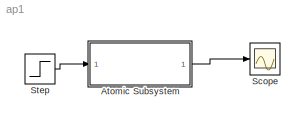
MODEL ap1
KIND model
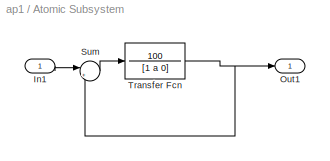
BLOCK [SubSystem] Atomic Subsystem
  FunctionWithSeparateData = off
  MaskEnableString = on
  MaskHideContents = off
  MaskIconFrame = on
  MaskIconOpaque = on
  MaskIconRotate = none
  MaskIconUnits = autoscale
  MaskPromptString = variabila
  MaskStyleString = edit
  MaskToolTipString = on
  MaskTunableValueString = on
  MaskValueString = 25
  MaskVariables = a=@1;
  MaskVisibilityString = on
  MinAlgLoopOccurrences = off
  Opaque = off
  Ports = [1, 1]
  PropExecContextOutsideSubsystem = off
  RTWSystemCode = Auto
  RequestExecContextInheritance = off
  TreatAsAtomicUnit = on
BLOCK [Inport] Atomic Subsystem/In1
  IconDisplay = Port number
  OutDataType = sfix(16)
  OutScaling = 2^0
BLOCK [Outport] Atomic Subsystem/Out1
  IconDisplay = Port number
  OutDataType = sfix(16)
  OutScaling = 2^0
BLOCK [Sum] Atomic Subsystem/Sum
  IconShape = round
  InputSameDT = off
  Inputs = |+-
  OutDataType = sfix(16)
  OutDataTypeMode = Inherit via internal rule
  OutDataTypeStr = Inherit: Inherit via internal rule
  OutScaling = 2^0
  Ports = [2, 1]
  SaturateOnIntegerOverflow = off
BLOCK [TransferFcn] Atomic Subsystem/Transfer Fcn
  Denominator = [1 a 0]
  Numerator = 100
BLOCK [Scope] Scope
  DataFormat = StructureWithTime
  Floating = off
  NumInputPorts = 1
  Ports = [1]
  SampleTime = 0
BLOCK [Step] Step
  SampleTime = 0
  Time = 0
LINE Atomic Subsystem/In1:1 -> Atomic Subsystem/Sum:1
LINE Atomic Subsystem/Sum:1 -> Atomic Subsystem/Transfer Fcn:1
NET Atomic Subsystem/Transfer Fcn:1 -> Atomic Subsystem/Out1:1, Atomic Subsystem/Sum:2
LINE Atomic Subsystem:1 -> Scope:1
LINE Step:1 -> Atomic Subsystem:1
note: NET lines group one-source signal fan-out (src -> all destinations, sorted); 1:1 wires keep LINE
